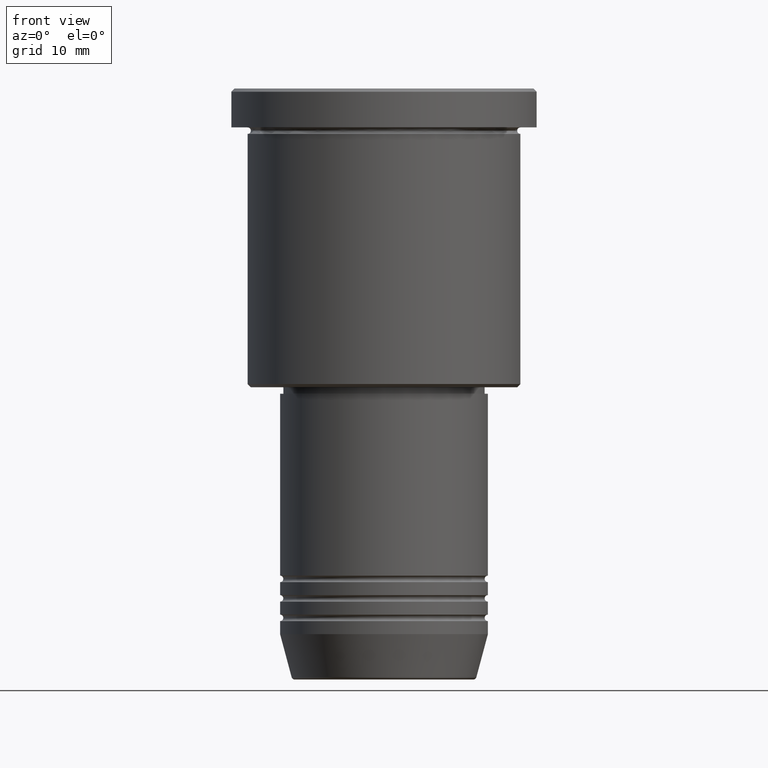
[diagram: clean part render]
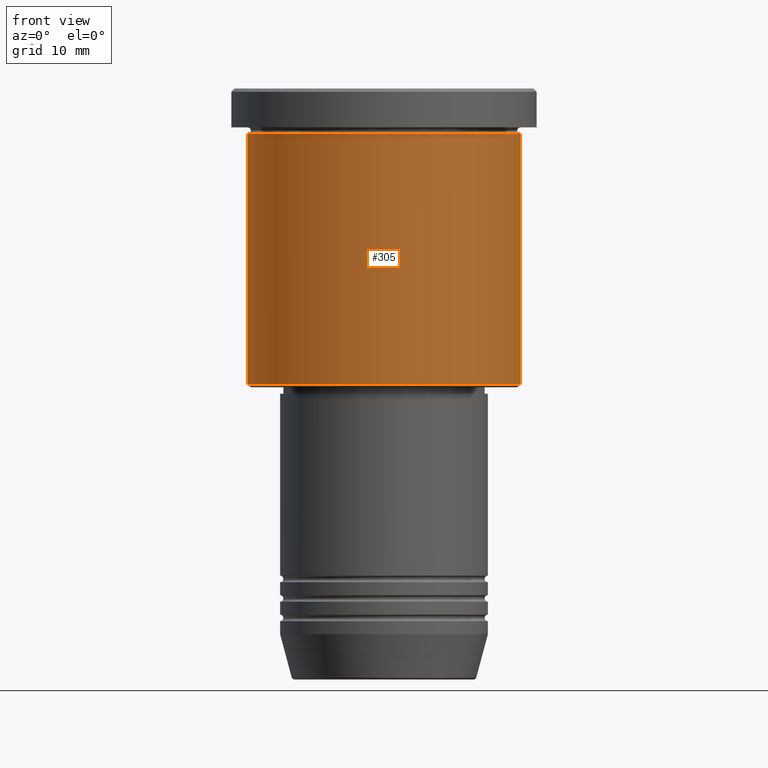
[diagram: same view with one face highlighted and labeled with its STEP entity id]
A machine part, front view. The second image highlights one B-rep face of the part: STEP entity #305.
In plain terms, the highlighted cylindrical surface (partial cylindrical patch) has radius 21 mm, axis along (-0, -0, 1).
Its self-contained STEP definition (entity closure, byte-faithful):
#22 = DIRECTION ( 'NONE',  ( -0.000000000000000000, -0.000000000000000000, 1.000000000000000000 ) ) ;
#107 = CIRCLE ( 'NONE', #926, 21.00000000000000000 ) ;
#133 = DIRECTION ( 'NONE',  ( 1.000000000000000000, 0.000000000000000000, 0.000000000000000000 ) ) ;
#205 = EDGE_CURVE ( 'NONE', #952, #973, #107, .T. ) ;
#285 = CARTESIAN_POINT ( 'NONE',  ( -21.00000000000000000, 2.571758278209441661E-15, -6.999999999999994671 ) ) ;
#289 = EDGE_CURVE ( 'NONE', #952, #778, #981, .T. ) ;
#303 = CYLINDRICAL_SURFACE ( 'NONE', #1154, 21.00000000000000000 ) ;
#305 = ADVANCED_FACE ( 'NONE', ( #481 ), #303, .T. ) ;
#306 = DIRECTION ( 'NONE',  ( -0.000000000000000000, -0.000000000000000000, 1.000000000000000000 ) ) ;
#313 = DIRECTION ( 'NONE',  ( -0.000000000000000000, -0.000000000000000000, 1.000000000000000000 ) ) ;
#328 = CARTESIAN_POINT ( 'NONE',  ( 0.000000000000000000, 0.000000000000000000, -6.999999999999994671 ) ) ;
#335 = DIRECTION ( 'NONE',  ( -0.000000000000000000, -0.000000000000000000, 1.000000000000000000 ) ) ;
#349 = AXIS2_PLACEMENT_3D ( 'NONE', #328, #306, #133 ) ;
#434 = VERTEX_POINT ( 'NONE', #675 ) ;
#481 = FACE_OUTER_BOUND ( 'NONE', #1110, .T. ) ;
#508 = DIRECTION ( 'NONE',  ( -0.000000000000000000, -0.000000000000000000, 1.000000000000000000 ) ) ;
#515 = DIRECTION ( 'NONE',  ( 1.000000000000000000, 0.000000000000000000, 0.000000000000000000 ) ) ;
#556 = ORIENTED_EDGE ( 'NONE', *, *, #997, .T. ) ;
#598 = CARTESIAN_POINT ( 'NONE',  ( -21.00000000000000000, 2.571758278209441661E-15, -45.49999999999998579 ) ) ;
#635 = ORIENTED_EDGE ( 'NONE', *, *, #205, .T. ) ;
#675 = CARTESIAN_POINT ( 'NONE',  ( 21.00000000000000000, 0.000000000000000000, -6.999999999999994671 ) ) ;
#708 = ORIENTED_EDGE ( 'NONE', *, *, #289, .F. ) ;
#778 = VERTEX_POINT ( 'NONE', #285 ) ;
#784 = CARTESIAN_POINT ( 'NONE',  ( 21.00000000000000000, 0.000000000000000000, 0.000000000000000000 ) ) ;
#798 = DIRECTION ( 'NONE',  ( -1.000000000000000000, 0.000000000000000000, 0.000000000000000000 ) ) ;
#841 = CIRCLE ( 'NONE', #349, 21.00000000000000000 ) ;
#869 = CARTESIAN_POINT ( 'NONE',  ( 21.00000000000000000, 0.000000000000000000, -45.49999999999998579 ) ) ;
#888 = VECTOR ( 'NONE', #22, 1000.000000000000000 ) ;
#926 = AXIS2_PLACEMENT_3D ( 'NONE', #1132, #313, #798 ) ;
#950 = LINE ( 'NONE', #784, #1176 ) ;
#952 = VERTEX_POINT ( 'NONE', #598 ) ;
#973 = VERTEX_POINT ( 'NONE', #869 ) ;
#981 = LINE ( 'NONE', #992, #888 ) ;
#992 = CARTESIAN_POINT ( 'NONE',  ( -21.00000000000000000, 2.571758278209441661E-15, 0.000000000000000000 ) ) ;
#997 = EDGE_CURVE ( 'NONE', #973, #434, #950, .T. ) ;
#998 = ORIENTED_EDGE ( 'NONE', *, *, #1021, .F. ) ;
#1021 = EDGE_CURVE ( 'NONE', #778, #434, #841, .T. ) ;
#1043 = CARTESIAN_POINT ( 'NONE',  ( 0.000000000000000000, 0.000000000000000000, 0.000000000000000000 ) ) ;
#1110 = EDGE_LOOP ( 'NONE', ( #708, #635, #556, #998 ) ) ;
#1132 = CARTESIAN_POINT ( 'NONE',  ( 0.000000000000000000, 0.000000000000000000, -45.49999999999998579 ) ) ;
#1154 = AXIS2_PLACEMENT_3D ( 'NONE', #1043, #335, #515 ) ;
#1176 = VECTOR ( 'NONE', #508, 1000.000000000000000 ) ;